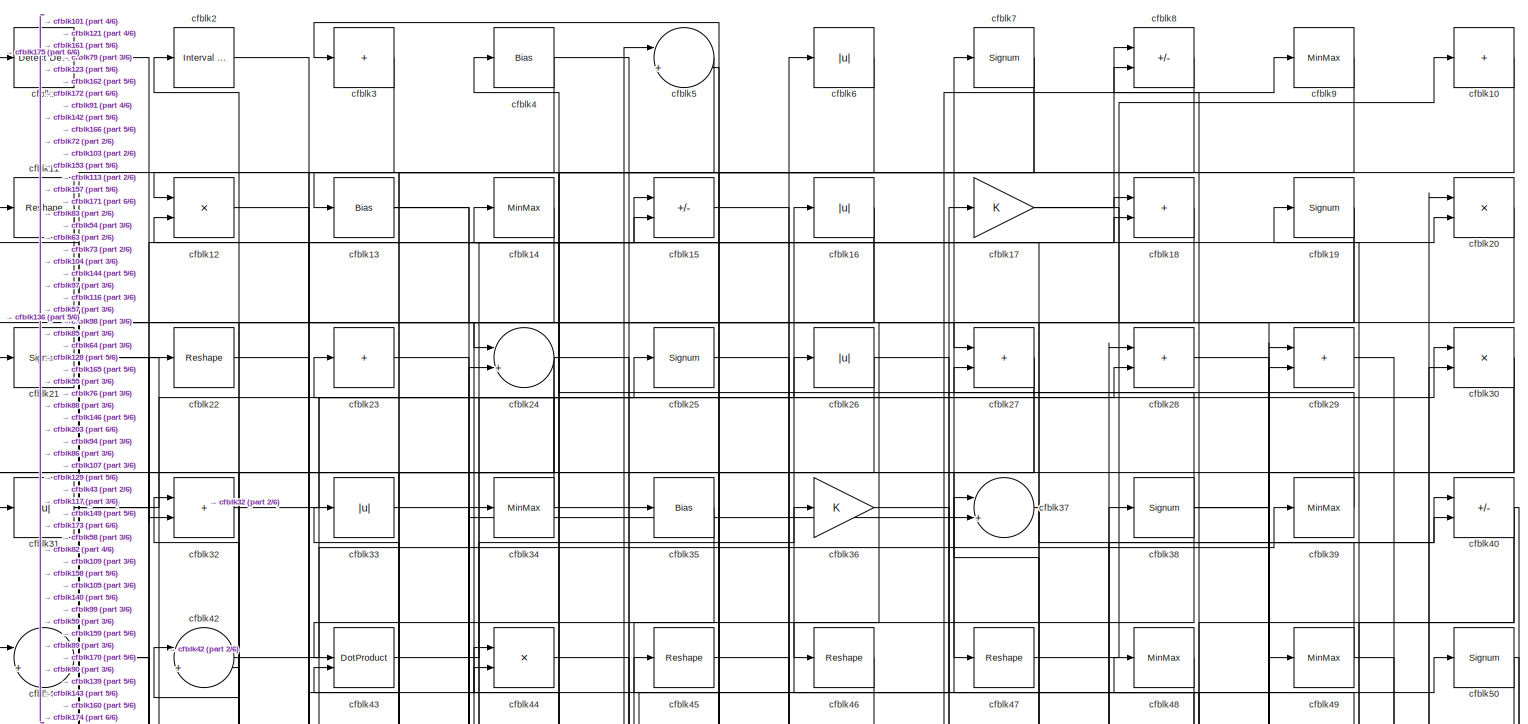
[diagram: root canvas - part 1/6, full width, top band]
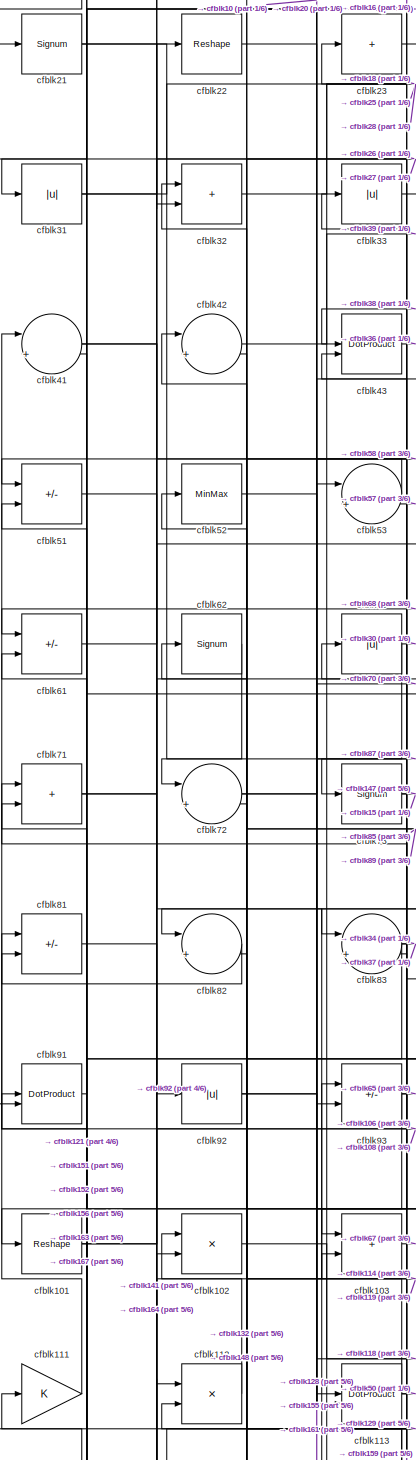
[diagram: root canvas - part 2/6, middle left region]
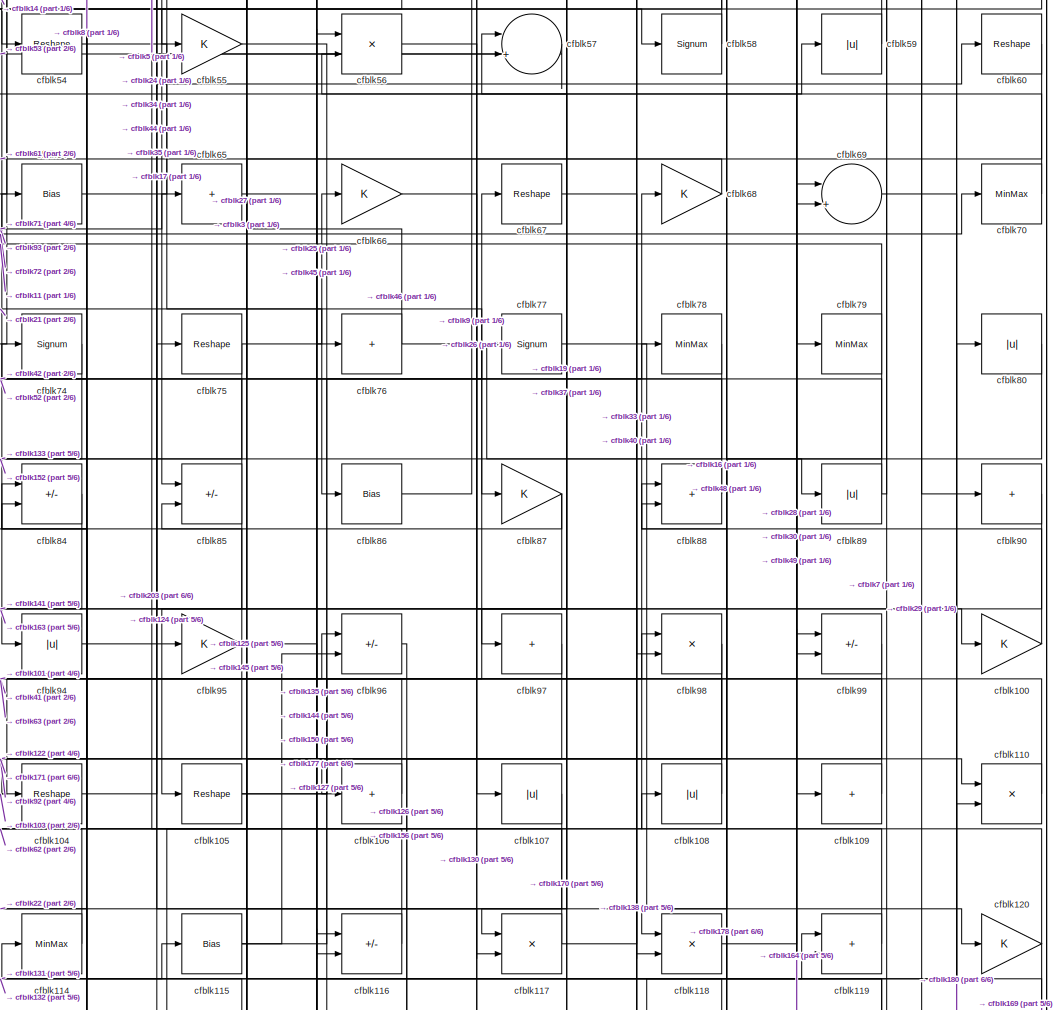
[diagram: root canvas - part 3/6, central region]
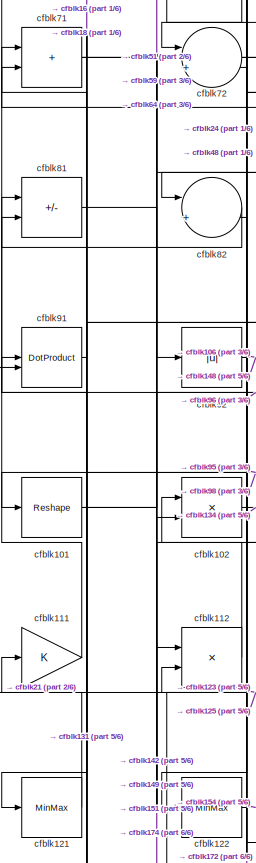
[diagram: root canvas - part 4/6, middle left region]
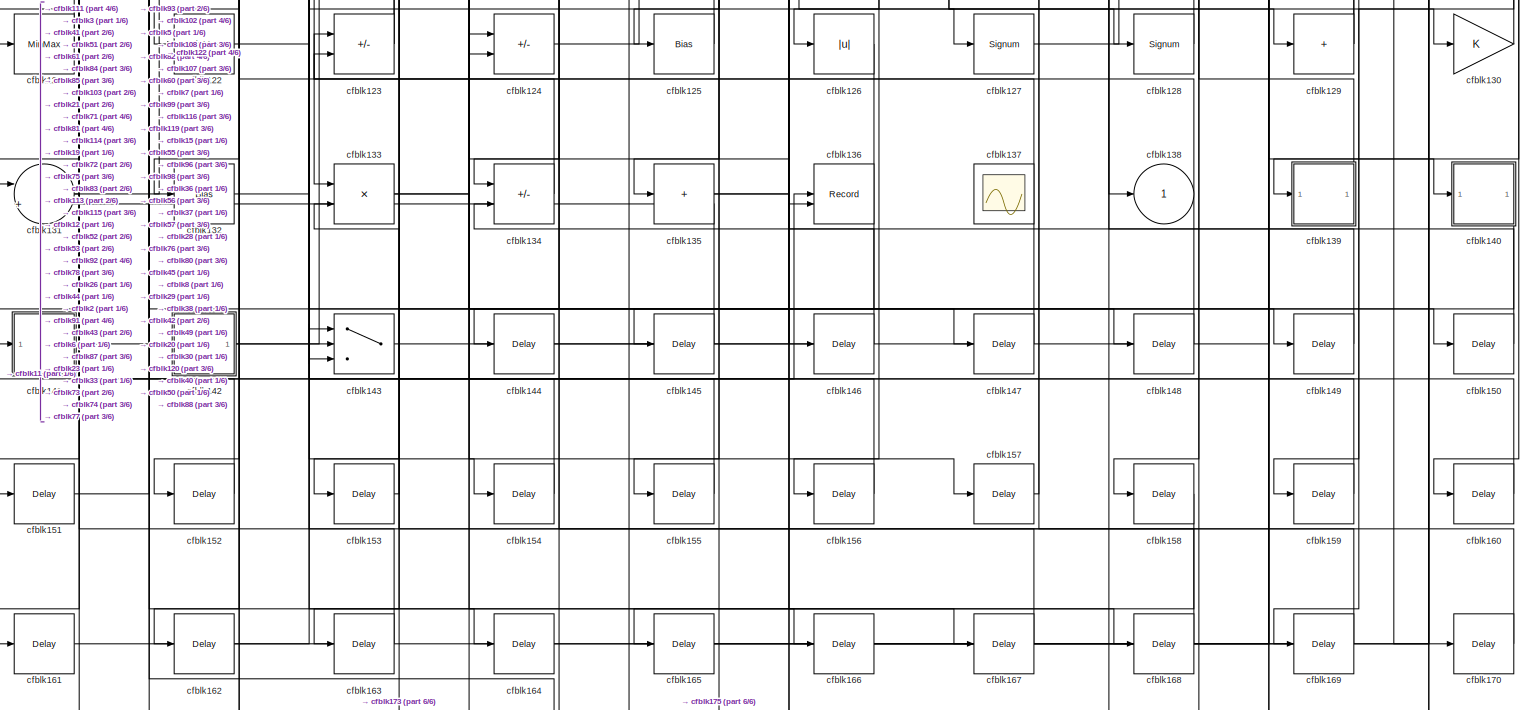
[diagram: root canvas - part 5/6, full width, bottom band]
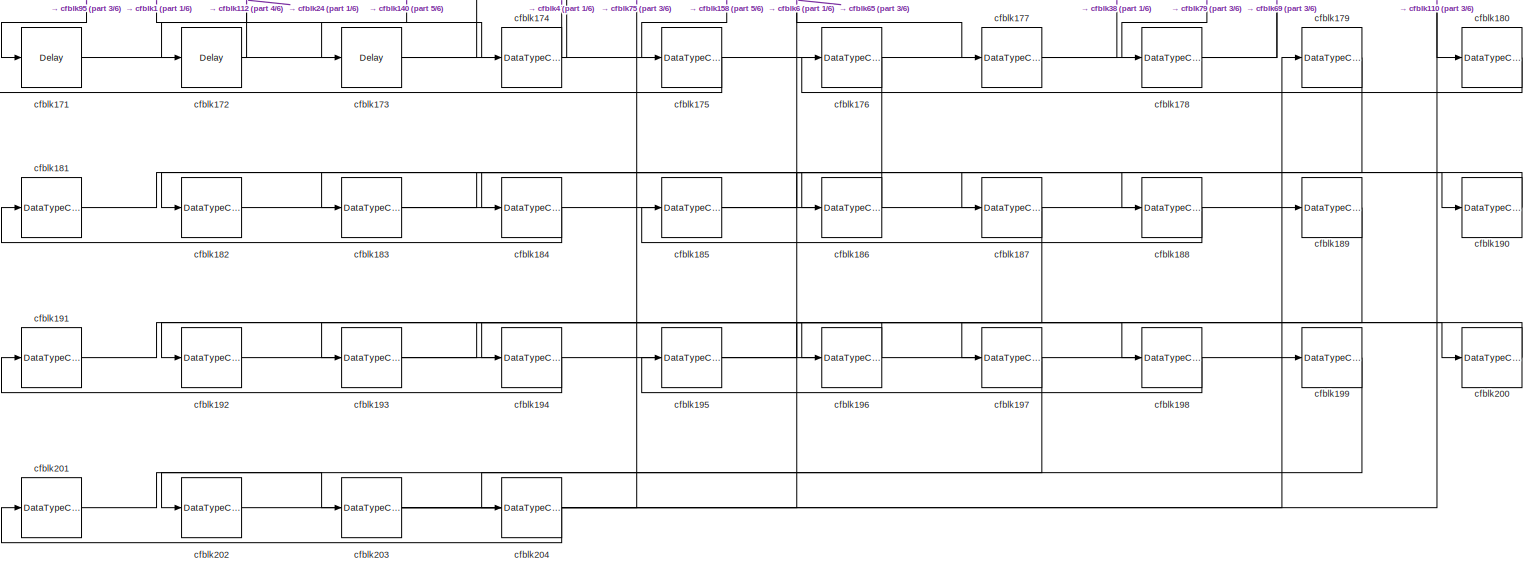
[diagram: root canvas - part 6/6, full width, bottom band]
MODEL slx_ead80d2f9cbe
KIND model
CONFIG AbsTol = auto
CONFIG EnableMultiTasking = off
CONFIG FixedStep = auto
CONFIG MaxStep = auto
CONFIG MinStep = auto
CONFIG RelTol = 1e-3
CONFIG SampleTimeConstraint = Unconstrained
CONFIG SolverName = VariableStepAuto
CONFIG StartTime = 0.0
CONFIG StopTime = 10.0
BLOCK [Reference] cfblk1  REF=simulink/Logic and Bit
Operations/Detect
Decrease
  LibrarySourceBlock = hdlsllib/Logic and Bit\nOperations/Detect\nDecrease
  SourceBlock = simulink/Logic and Bit\nOperations/Detect\nDecrease
  SourceType = Detect Decrease
BLOCK [Sum] cfblk10
  IconShape = rectangular
  Inputs = +
BLOCK [Gain] cfblk100
BLOCK [Reshape] cfblk101
BLOCK [Product] cfblk102
  Inputs = */
  RndMeth = Zero
  SaturateOnIntegerOverflow = on
BLOCK [Sum] cfblk103
  IconShape = rectangular
BLOCK [Reshape] cfblk104
BLOCK [Reshape] cfblk105
BLOCK [Sum] cfblk106
  IconShape = rectangular
  Inputs = +
BLOCK [Abs] cfblk107
  SaturateOnIntegerOverflow = off
BLOCK [Abs] cfblk108
  SaturateOnIntegerOverflow = off
BLOCK [Sum] cfblk109
  IconShape = rectangular
  Inputs = +
BLOCK [Reshape] cfblk11
BLOCK [Product] cfblk110
  Inputs = */
  RndMeth = Zero
  SaturateOnIntegerOverflow = on
BLOCK [Gain] cfblk111
BLOCK [Product] cfblk112
  Inputs = */
  RndMeth = Zero
  SaturateOnIntegerOverflow = on
BLOCK [DotProduct] cfblk113
  OutDataTypeStr = Inherit: Inherit via internal rule
BLOCK [MinMax] cfblk114
BLOCK [Bias] cfblk115
  Bias = 0.0
  SaturateOnIntegerOverflow = off
BLOCK [Sum] cfblk116
  IconShape = rectangular
  Inputs = +-
BLOCK [Product] cfblk117
  Inputs = */
  RndMeth = Zero
  SaturateOnIntegerOverflow = on
BLOCK [Product] cfblk118
  Inputs = */
  RndMeth = Zero
  SaturateOnIntegerOverflow = on
BLOCK [Sum] cfblk119
  IconShape = rectangular
BLOCK [Product] cfblk12
  Inputs = */
  RndMeth = Zero
  SaturateOnIntegerOverflow = on
BLOCK [Gain] cfblk120
BLOCK [MinMax] cfblk121
BLOCK [MinMax] cfblk122
BLOCK [Sum] cfblk123
  IconShape = rectangular
  Inputs = +-
BLOCK [Sum] cfblk124
  IconShape = rectangular
  Inputs = +-
BLOCK [Bias] cfblk125
  Bias = 0.0
  SaturateOnIntegerOverflow = off
BLOCK [Abs] cfblk126
  SaturateOnIntegerOverflow = off
BLOCK [Signum] cfblk127
BLOCK [Signum] cfblk128
BLOCK [Sum] cfblk129
  IconShape = rectangular
  Inputs = +
BLOCK [Bias] cfblk13
  Bias = 0.0
  SaturateOnIntegerOverflow = off
BLOCK [Gain] cfblk130
BLOCK [Sum] cfblk131
  Inputs = |++
BLOCK [Bias] cfblk132
  Bias = 0.0
  SaturateOnIntegerOverflow = off
BLOCK [Product] cfblk133
  Inputs = */
  RndMeth = Zero
  SaturateOnIntegerOverflow = on
BLOCK [Sum] cfblk134
  IconShape = rectangular
  Inputs = +-
BLOCK [Sum] cfblk135
  IconShape = rectangular
  Inputs = +
BLOCK [Record] cfblk136
  CompatibilityTag = XY
  FileSettingsInternal = {"entries":[{"content":{"excelSettings":{"content":{},"type":"Streamout.ExcelSettings"}},"type":"Streamout.FileSettingStorage","uuid":""}],"packageUris":["http:\/\/schema.mathworks.com\/mf0\/streamout_blocks\/R2020a"],"version":"1.0"}
  Layout = [1 1]
  SignalsInternal = {"entries":[{"content":{"signals":[{"content":{"blockPath":[],"dimensions":[1],"domain":"","lineColor":"#a2142f","plots":[1],"port":1,"signalID":275,"signalName":"XY Graph:1"},"type":"RecordBlkView.Signal","uuid":""},{"content":{"blockPath":[],"dimensions":[1],"domain":"","lineColor":"#139fff","plots":[1],"port":2,"signalID":278,"signalName":"XY Graph:2"},"type":"RecordBlkView.Signal","uuid":""}]}...<+144ch>
  VisualizationBindings = {"xyplotplugin":{"info":[{"series":[{"bindingParametersList":[{"parameter":"X-Axis","signalID":275,"signalName":"XY Graph:1"},{"parameter":"Y-Axis","signalID":278,"signalName":"XY Graph:2"}],"seriesID":57373}],"subplotID":1}]}}
  st = -1
BLOCK [Scope] cfblk137
  Floating = on
  NumInputPorts = 1
  ScopeSpecificationString = Simulink.scopes.TimeScopeBlockCfg('CurrentConfiguration', extmgr.ConfigurationSet(extmgr.Configuration('Core','General UI',true,'FigureColor',[0.156862745098039 0.156862745098039 0.156862745098039]),extmgr.Configuration('Core','Source UI',true),extmgr.Configuration('Sources','WiredSimulink',true,'DataLoggingVariableName','ScopeData1','DataLoggingSaveFormat','StructureWithTime','DataLoggingLimitDat...<+2713ch>
BLOCK [Outport] cfblk138
  VectorParamsAs1DForOutWhenUnconnected = off
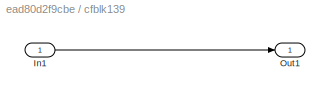
BLOCK [SubSystem] cfblk139
  LibrarySourceBlock = hdlsllib/Ports &\nSubsystems/Subsystem
BLOCK [Inport] cfblk139/In1
BLOCK [Outport] cfblk139/Out1
BLOCK [MinMax] cfblk14
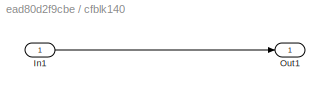
BLOCK [SubSystem] cfblk140
  LibrarySourceBlock = hdlsllib/Ports &\nSubsystems/Subsystem
BLOCK [Inport] cfblk140/In1
BLOCK [Outport] cfblk140/Out1
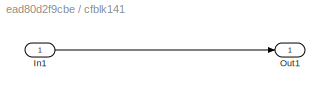
BLOCK [SubSystem] cfblk141
  LibrarySourceBlock = hdlsllib/Ports &\nSubsystems/Subsystem
BLOCK [Inport] cfblk141/In1
BLOCK [Outport] cfblk141/Out1
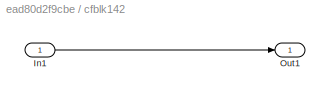
BLOCK [SubSystem] cfblk142
  LibrarySourceBlock = hdlsllib/Ports &\nSubsystems/Subsystem
BLOCK [Inport] cfblk142/In1
BLOCK [Outport] cfblk142/Out1
BLOCK [Switch] cfblk143
  InputSameDT = off
  SaturateOnIntegerOverflow = off
BLOCK [Delay] cfblk144
  InputPortMap = u0
  SampleTime = 1
BLOCK [Delay] cfblk145
  InputPortMap = u0
  SampleTime = 1
BLOCK [Delay] cfblk146
  InputPortMap = u0
  SampleTime = 1
BLOCK [Delay] cfblk147
  InputPortMap = u0
  SampleTime = 1
BLOCK [Delay] cfblk148
  InputPortMap = u0
  SampleTime = 1
BLOCK [Delay] cfblk149
  InputPortMap = u0
  SampleTime = 1
BLOCK [Sum] cfblk15
  IconShape = rectangular
  Inputs = +-
BLOCK [Delay] cfblk150
  InputPortMap = u0
  SampleTime = 1
BLOCK [Delay] cfblk151
  InputPortMap = u0
  SampleTime = 1
BLOCK [Delay] cfblk152
  InputPortMap = u0
  SampleTime = 1
BLOCK [Delay] cfblk153
  InputPortMap = u0
  SampleTime = 1
BLOCK [Delay] cfblk154
  InputPortMap = u0
  SampleTime = 1
BLOCK [Delay] cfblk155
  InputPortMap = u0
  SampleTime = 1
BLOCK [Delay] cfblk156
  InputPortMap = u0
  SampleTime = 1
BLOCK [Delay] cfblk157
  InputPortMap = u0
  SampleTime = 1
BLOCK [Delay] cfblk158
  InputPortMap = u0
  SampleTime = 1
BLOCK [Delay] cfblk159
  InputPortMap = u0
  SampleTime = 1
BLOCK [Abs] cfblk16
  SaturateOnIntegerOverflow = off
BLOCK [Delay] cfblk160
  InputPortMap = u0
  SampleTime = 1
BLOCK [Delay] cfblk161
  InputPortMap = u0
  SampleTime = 1
BLOCK [Delay] cfblk162
  InputPortMap = u0
  SampleTime = 1
BLOCK [Delay] cfblk163
  InputPortMap = u0
  SampleTime = 1
BLOCK [Delay] cfblk164
  InputPortMap = u0
  SampleTime = 1
BLOCK [Delay] cfblk165
  InputPortMap = u0
  SampleTime = 1
BLOCK [Delay] cfblk166
  InputPortMap = u0
  SampleTime = 1
BLOCK [Delay] cfblk167
  InputPortMap = u0
  SampleTime = 1
BLOCK [Delay] cfblk168
  InputPortMap = u0
  SampleTime = 1
BLOCK [Delay] cfblk169
  InputPortMap = u0
  SampleTime = 1
BLOCK [Gain] cfblk17
BLOCK [Delay] cfblk170
  InputPortMap = u0
  SampleTime = 1
BLOCK [Delay] cfblk171
  InputPortMap = u0
  SampleTime = 1
BLOCK [Delay] cfblk172
  InputPortMap = u0
  SampleTime = 1
BLOCK [Delay] cfblk173
  InputPortMap = u0
  SampleTime = 1
BLOCK [DataTypeConversion] cfblk174
  RndMeth = Floor
  SaturateOnIntegerOverflow = off
BLOCK [DataTypeConversion] cfblk175
  OutDataTypeStr = uint8
  RndMeth = Floor
  SaturateOnIntegerOverflow = off
BLOCK [DataTypeConversion] cfblk176
  RndMeth = Floor
  SaturateOnIntegerOverflow = off
BLOCK [DataTypeConversion] cfblk177
  OutDataTypeStr = uint8
  RndMeth = Floor
  SaturateOnIntegerOverflow = off
BLOCK [DataTypeConversion] cfblk178
  OutDataTypeStr = uint8
  RndMeth = Floor
  SaturateOnIntegerOverflow = off
BLOCK [DataTypeConversion] cfblk179
  RndMeth = Floor
  SaturateOnIntegerOverflow = off
BLOCK [Sum] cfblk18
  IconShape = rectangular
BLOCK [DataTypeConversion] cfblk180
  OutDataTypeStr = uint8
  RndMeth = Floor
  SaturateOnIntegerOverflow = off
BLOCK [DataTypeConversion] cfblk181
  RndMeth = Floor
  SaturateOnIntegerOverflow = off
BLOCK [DataTypeConversion] cfblk182
  OutDataTypeStr = uint8
  RndMeth = Floor
  SaturateOnIntegerOverflow = off
BLOCK [DataTypeConversion] cfblk183
  RndMeth = Floor
  SaturateOnIntegerOverflow = off
BLOCK [DataTypeConversion] cfblk184
  OutDataTypeStr = uint8
  RndMeth = Floor
  SaturateOnIntegerOverflow = off
BLOCK [DataTypeConversion] cfblk185
  RndMeth = Floor
  SaturateOnIntegerOverflow = off
BLOCK [DataTypeConversion] cfblk186
  OutDataTypeStr = uint8
  RndMeth = Floor
  SaturateOnIntegerOverflow = off
BLOCK [DataTypeConversion] cfblk187
  RndMeth = Floor
  SaturateOnIntegerOverflow = off
BLOCK [DataTypeConversion] cfblk188
  OutDataTypeStr = uint8
  RndMeth = Floor
  SaturateOnIntegerOverflow = off
BLOCK [DataTypeConversion] cfblk189
  RndMeth = Floor
  SaturateOnIntegerOverflow = off
BLOCK [Signum] cfblk19
BLOCK [DataTypeConversion] cfblk190
  OutDataTypeStr = uint8
  RndMeth = Floor
  SaturateOnIntegerOverflow = off
BLOCK [DataTypeConversion] cfblk191
  RndMeth = Floor
  SaturateOnIntegerOverflow = off
BLOCK [DataTypeConversion] cfblk192
  OutDataTypeStr = uint8
  RndMeth = Floor
  SaturateOnIntegerOverflow = off
BLOCK [DataTypeConversion] cfblk193
  RndMeth = Floor
  SaturateOnIntegerOverflow = off
BLOCK [DataTypeConversion] cfblk194
  OutDataTypeStr = uint8
  RndMeth = Floor
  SaturateOnIntegerOverflow = off
BLOCK [DataTypeConversion] cfblk195
  RndMeth = Floor
  SaturateOnIntegerOverflow = off
BLOCK [DataTypeConversion] cfblk196
  OutDataTypeStr = uint8
  RndMeth = Floor
  SaturateOnIntegerOverflow = off
BLOCK [DataTypeConversion] cfblk197
  RndMeth = Floor
  SaturateOnIntegerOverflow = off
BLOCK [DataTypeConversion] cfblk198
  OutDataTypeStr = uint8
  RndMeth = Floor
  SaturateOnIntegerOverflow = off
BLOCK [DataTypeConversion] cfblk199
  RndMeth = Floor
  SaturateOnIntegerOverflow = off
BLOCK [Reference] cfblk2  REF=hdlsllib/Logic and Bit
Operations/Interval Test
  SourceBlock = hdlsllib/Logic and Bit\nOperations/Interval Test
  SourceType = Interval Test
BLOCK [Product] cfblk20
  Inputs = */
  RndMeth = Zero
  SaturateOnIntegerOverflow = on
BLOCK [DataTypeConversion] cfblk200
  OutDataTypeStr = uint8
  RndMeth = Floor
  SaturateOnIntegerOverflow = off
BLOCK [DataTypeConversion] cfblk201
  RndMeth = Floor
  SaturateOnIntegerOverflow = off
BLOCK [DataTypeConversion] cfblk202
  OutDataTypeStr = uint8
  RndMeth = Floor
  SaturateOnIntegerOverflow = off
BLOCK [DataTypeConversion] cfblk203
  RndMeth = Floor
  SaturateOnIntegerOverflow = off
BLOCK [DataTypeConversion] cfblk204
  OutDataTypeStr = uint8
  RndMeth = Floor
  SaturateOnIntegerOverflow = off
BLOCK [Signum] cfblk21
BLOCK [Reshape] cfblk22
BLOCK [Sum] cfblk23
  IconShape = rectangular
  Inputs = +
BLOCK [Sum] cfblk24
  Inputs = |++
BLOCK [Signum] cfblk25
BLOCK [Abs] cfblk26
  SaturateOnIntegerOverflow = off
BLOCK [Sum] cfblk27
  IconShape = rectangular
BLOCK [Sum] cfblk28
  IconShape = rectangular
BLOCK [Sum] cfblk29
  IconShape = rectangular
BLOCK [Sum] cfblk3
  IconShape = rectangular
  Inputs = +
BLOCK [Product] cfblk30
  Inputs = */
  RndMeth = Zero
  SaturateOnIntegerOverflow = on
BLOCK [Abs] cfblk31
  SaturateOnIntegerOverflow = off
BLOCK [Sum] cfblk32
  IconShape = rectangular
BLOCK [Abs] cfblk33
  SaturateOnIntegerOverflow = off
BLOCK [MinMax] cfblk34
BLOCK [Bias] cfblk35
  Bias = 0.0
  SaturateOnIntegerOverflow = off
BLOCK [Gain] cfblk36
BLOCK [Sum] cfblk37
  Inputs = |++
BLOCK [Signum] cfblk38
BLOCK [MinMax] cfblk39
BLOCK [Bias] cfblk4
  Bias = 0.0
  SaturateOnIntegerOverflow = off
BLOCK [Sum] cfblk40
  IconShape = rectangular
  Inputs = +-
BLOCK [Sum] cfblk41
  Inputs = |++
BLOCK [Sum] cfblk42
  Inputs = |++
BLOCK [DotProduct] cfblk43
  OutDataTypeStr = Inherit: Inherit via internal rule
BLOCK [Product] cfblk44
  Inputs = */
  RndMeth = Zero
  SaturateOnIntegerOverflow = on
BLOCK [Reshape] cfblk45
BLOCK [Reshape] cfblk46
BLOCK [Reshape] cfblk47
BLOCK [MinMax] cfblk48
BLOCK [MinMax] cfblk49
BLOCK [Sum] cfblk5
  Inputs = |++
BLOCK [Signum] cfblk50
BLOCK [Sum] cfblk51
  IconShape = rectangular
  Inputs = +-
BLOCK [MinMax] cfblk52
BLOCK [Sum] cfblk53
  Inputs = |++
BLOCK [Reshape] cfblk54
BLOCK [Gain] cfblk55
BLOCK [Product] cfblk56
  Inputs = */
  RndMeth = Zero
  SaturateOnIntegerOverflow = on
BLOCK [Sum] cfblk57
  Inputs = |++
BLOCK [Signum] cfblk58
BLOCK [Abs] cfblk59
  SaturateOnIntegerOverflow = off
BLOCK [Abs] cfblk6
  SaturateOnIntegerOverflow = off
BLOCK [Reshape] cfblk60
BLOCK [Sum] cfblk61
  IconShape = rectangular
  Inputs = +-
BLOCK [Signum] cfblk62
BLOCK [Abs] cfblk63
  SaturateOnIntegerOverflow = off
BLOCK [Bias] cfblk64
  Bias = 0.0
  SaturateOnIntegerOverflow = off
BLOCK [Sum] cfblk65
  IconShape = rectangular
  Inputs = +
BLOCK [Gain] cfblk66
BLOCK [Reshape] cfblk67
BLOCK [Gain] cfblk68
BLOCK [Sum] cfblk69
  Inputs = |++
BLOCK [Signum] cfblk7
BLOCK [MinMax] cfblk70
BLOCK [Sum] cfblk71
  IconShape = rectangular
BLOCK [Sum] cfblk72
  Inputs = |++
BLOCK [Signum] cfblk73
BLOCK [Signum] cfblk74
BLOCK [Reshape] cfblk75
BLOCK [Sum] cfblk76
  IconShape = rectangular
  Inputs = +
BLOCK [Signum] cfblk77
BLOCK [MinMax] cfblk78
BLOCK [MinMax] cfblk79
BLOCK [Sum] cfblk8
  IconShape = rectangular
  Inputs = +-
BLOCK [Abs] cfblk80
  SaturateOnIntegerOverflow = off
BLOCK [Sum] cfblk81
  IconShape = rectangular
  Inputs = +-
BLOCK [Sum] cfblk82
  Inputs = |++
BLOCK [Sum] cfblk83
  Inputs = |++
BLOCK [Sum] cfblk84
  IconShape = rectangular
  Inputs = +-
BLOCK [Sum] cfblk85
  IconShape = rectangular
  Inputs = +-
BLOCK [Bias] cfblk86
  Bias = 0.0
  SaturateOnIntegerOverflow = off
BLOCK [Gain] cfblk87
BLOCK [Sum] cfblk88
  IconShape = rectangular
BLOCK [Abs] cfblk89
  SaturateOnIntegerOverflow = off
BLOCK [MinMax] cfblk9
BLOCK [Sum] cfblk90
  IconShape = rectangular
  Inputs = +
BLOCK [DotProduct] cfblk91
  OutDataTypeStr = Inherit: Inherit via internal rule
BLOCK [Abs] cfblk92
  SaturateOnIntegerOverflow = off
BLOCK [Sum] cfblk93
  IconShape = rectangular
  Inputs = +-
BLOCK [Abs] cfblk94
  SaturateOnIntegerOverflow = off
BLOCK [Gain] cfblk95
BLOCK [Sum] cfblk96
  IconShape = rectangular
  Inputs = +-
BLOCK [Sum] cfblk97
  IconShape = rectangular
  Inputs = +
BLOCK [Product] cfblk98
  Inputs = */
  RndMeth = Zero
  SaturateOnIntegerOverflow = on
BLOCK [Sum] cfblk99
  IconShape = rectangular
  Inputs = +-
LINE cfblk100:1 -> cfblk88:1
NET cfblk101:1 -> cfblk59:1, cfblk96:1
LINE cfblk102:1 -> cfblk134:1
LINE cfblk103:1 -> cfblk67:1
LINE cfblk104:1 -> cfblk60:1
NET cfblk105:1 -> cfblk49:1, cfblk78:1
LINE cfblk106:1 -> cfblk63:1
LINE cfblk107:1 -> cfblk145:1
LINE cfblk108:1 -> cfblk41:1
LINE cfblk109:1 -> cfblk48:1
LINE cfblk10:1 -> cfblk113:2
LINE cfblk110:1 -> cfblk74:1
LINE cfblk111:1 -> cfblk81:1
LINE cfblk112:1 -> cfblk102:1
NET cfblk113:1 -> cfblk18:2, cfblk32:1, cfblk50:1
LINE cfblk114:1 -> cfblk62:1
NET cfblk115:1 -> cfblk96:2, cfblk98:1
LINE cfblk116:1 -> cfblk84:1
NET cfblk117:1 -> cfblk33:1, cfblk40:1
LINE cfblk118:1 -> cfblk99:1
LINE cfblk119:1 -> cfblk93:1
LINE cfblk11:1 -> cfblk136:1
NET cfblk120:1 -> cfblk169:1, cfblk68:1
LINE cfblk121:1 -> cfblk21:1
LINE cfblk122:1 -> cfblk154:1
NET cfblk123:1 -> cfblk2:1, cfblk91:1
LINE cfblk124:1 -> cfblk108:1
LINE cfblk125:1 -> cfblk82:2
LINE cfblk126:1 -> cfblk155:1
LINE cfblk127:1 -> cfblk80:1
LINE cfblk128:1 -> cfblk45:1
NET cfblk129:1 -> cfblk42:1, cfblk44:2
LINE cfblk12:1 -> cfblk166:1
LINE cfblk130:1 -> cfblk88:2
NET cfblk131:1 -> cfblk111:1, cfblk114:1
LINE cfblk132:1 -> cfblk115:1
NET cfblk133:1 -> cfblk150:1, cfblk77:1
LINE cfblk134:1 -> cfblk123:1
NET cfblk135:1 -> cfblk119:1, cfblk168:1
LINE cfblk139/In1:1 -> cfblk139/Out1:1
LINE cfblk139:1 -> cfblk8:2
NET cfblk13:1 -> cfblk15:2, cfblk27:1
LINE cfblk140/In1:1 -> cfblk140/Out1:1
LINE cfblk140:1 -> cfblk173:1
LINE cfblk141/In1:1 -> cfblk141/Out1:1
LINE cfblk141:1 -> cfblk103:2
LINE cfblk142/In1:1 -> cfblk142/Out1:1
NET cfblk142:1 -> cfblk26:1, cfblk44:1
LINE cfblk143:1 -> cfblk29:1
LINE cfblk144:1 -> cfblk56:1
LINE cfblk145:1 -> cfblk131:2
LINE cfblk146:1 -> cfblk134:2
LINE cfblk147:1 -> cfblk43:2
LINE cfblk148:1 -> cfblk72:2
LINE cfblk149:1 -> cfblk28:1
LINE cfblk14:1 -> cfblk54:1
LINE cfblk150:1 -> cfblk116:1
LINE cfblk151:1 -> cfblk102:2
LINE cfblk152:1 -> cfblk61:2
LINE cfblk153:1 -> cfblk133:2
LINE cfblk154:1 -> cfblk124:1
LINE cfblk155:1 -> cfblk113:1
LINE cfblk156:1 -> cfblk51:2
LINE cfblk157:1 -> cfblk37:1
LINE cfblk158:1 -> cfblk175:1
LINE cfblk159:1 -> cfblk83:2
LINE cfblk15:1 -> cfblk146:1
LINE cfblk160:1 -> cfblk143:1
LINE cfblk161:1 -> cfblk53:1
LINE cfblk162:1 -> cfblk29:2
LINE cfblk163:1 -> cfblk41:2
LINE cfblk164:1 -> cfblk119:2
LINE cfblk165:1 -> cfblk30:2
LINE cfblk166:1 -> cfblk20:1
LINE cfblk167:1 -> cfblk143:2
LINE cfblk168:1 -> cfblk123:2
LINE cfblk169:1 -> cfblk84:2
NET cfblk16:1 -> cfblk101:1, cfblk31:1
LINE cfblk170:1 -> cfblk57:1
LINE cfblk171:1 -> cfblk24:2
LINE cfblk172:1 -> cfblk112:2
LINE cfblk173:1 -> cfblk38:1
NET cfblk174:1 -> cfblk112:1, cfblk4:1
LINE cfblk175:1 -> cfblk1:1
LINE cfblk176:1 -> cfblk182:1
LINE cfblk177:1 -> cfblk69:1
LINE cfblk178:1 -> cfblk69:2
LINE cfblk179:1 -> cfblk184:1
NET cfblk17:1 -> cfblk79:1, cfblk8:1
LINE cfblk180:1 -> cfblk176:1
LINE cfblk181:1 -> cfblk186:1
LINE cfblk182:1 -> cfblk179:1
LINE cfblk183:1 -> cfblk188:1
LINE cfblk184:1 -> cfblk181:1
LINE cfblk185:1 -> cfblk190:1
LINE cfblk186:1 -> cfblk183:1
LINE cfblk187:1 -> cfblk192:1
LINE cfblk188:1 -> cfblk185:1
LINE cfblk189:1 -> cfblk194:1
LINE cfblk18:1 -> cfblk121:1
LINE cfblk190:1 -> cfblk187:1
LINE cfblk191:1 -> cfblk196:1
LINE cfblk192:1 -> cfblk189:1
LINE cfblk193:1 -> cfblk198:1
LINE cfblk194:1 -> cfblk191:1
LINE cfblk195:1 -> cfblk200:1
LINE cfblk196:1 -> cfblk193:1
LINE cfblk197:1 -> cfblk202:1
LINE cfblk198:1 -> cfblk195:1
LINE cfblk199:1 -> cfblk204:1
NET cfblk19:1 -> cfblk162:1, cfblk97:1
LINE cfblk1:1 -> cfblk174:1
LINE cfblk200:1 -> cfblk197:1
LINE cfblk201:1 -> cfblk203:1
LINE cfblk202:1 -> cfblk199:1
NET cfblk203:1 -> cfblk110:2, cfblk6:1, cfblk75:1
LINE cfblk204:1 -> cfblk201:1
LINE cfblk20:1 -> cfblk46:1
NET cfblk21:1 -> cfblk164:1, cfblk87:1
LINE cfblk22:1 -> cfblk118:2
LINE cfblk23:1 -> cfblk136:2
NET cfblk24:1 -> cfblk116:2, cfblk172:1, cfblk91:2
LINE cfblk25:1 -> cfblk76:1
NET cfblk26:1 -> cfblk107:1, cfblk43:1
NET cfblk27:1 -> cfblk32:2, cfblk55:1
LINE cfblk28:1 -> cfblk109:1
LINE cfblk29:1 -> cfblk90:1
LINE cfblk2:1 -> cfblk24:1
NET cfblk30:1 -> cfblk47:1, cfblk99:2
NET cfblk31:1 -> cfblk18:1, cfblk25:1
LINE cfblk32:1 -> cfblk28:2
LINE cfblk33:1 -> cfblk157:1
NET cfblk34:1 -> cfblk23:1, cfblk98:2
LINE cfblk35:1 -> cfblk85:1
LINE cfblk36:1 -> cfblk129:1
LINE cfblk37:1 -> cfblk117:1
NET cfblk38:1 -> cfblk103:1, cfblk140:1, cfblk27:2, cfblk40:2
LINE cfblk39:1 -> cfblk14:1
LINE cfblk3:1 -> cfblk161:1
NET cfblk40:1 -> cfblk158:1, cfblk159:1, cfblk160:1
NET cfblk41:1 -> cfblk58:1, cfblk83:1
LINE cfblk42:1 -> cfblk39:1
LINE cfblk43:1 -> cfblk36:1
LINE cfblk44:1 -> cfblk57:2
LINE cfblk45:1 -> cfblk117:2
LINE cfblk46:1 -> cfblk94:1
LINE cfblk47:1 -> cfblk10:1
LINE cfblk48:1 -> cfblk82:1
NET cfblk49:1 -> cfblk12:2, cfblk170:1
NET cfblk4:1 -> cfblk13:1, cfblk35:1
NET cfblk50:1 -> cfblk139:1, cfblk143:3
LINE cfblk51:1 -> cfblk92:1
LINE cfblk52:1 -> cfblk128:1
LINE cfblk53:1 -> cfblk51:1
LINE cfblk54:1 -> cfblk86:1
LINE cfblk55:1 -> cfblk127:1
LINE cfblk56:1 -> cfblk130:1
LINE cfblk57:1 -> cfblk53:2
LINE cfblk58:1 -> cfblk16:1
LINE cfblk59:1 -> cfblk7:1
LINE cfblk5:1 -> cfblk144:1
LINE cfblk60:1 -> cfblk125:1
LINE cfblk61:1 -> cfblk22:1
LINE cfblk62:1 -> cfblk72:1
NET cfblk63:1 -> cfblk30:1, cfblk93:2
LINE cfblk64:1 -> cfblk17:1
LINE cfblk65:1 -> cfblk177:1
LINE cfblk66:1 -> cfblk100:1
LINE cfblk67:1 -> cfblk89:1
LINE cfblk68:1 -> cfblk61:1
LINE cfblk69:1 -> cfblk180:1
LINE cfblk6:1 -> cfblk153:1
LINE cfblk70:1 -> cfblk56:2
NET cfblk71:1 -> cfblk142:1, cfblk64:1
NET cfblk72:1 -> cfblk20:2, cfblk70:1
NET cfblk73:1 -> cfblk147:1, cfblk15:1
LINE cfblk74:1 -> cfblk124:2
NET cfblk75:1 -> cfblk152:1, cfblk66:1
NET cfblk76:1 -> cfblk138:1, cfblk3:1
LINE cfblk77:1 -> cfblk120:1
LINE cfblk78:1 -> cfblk133:1
NET cfblk79:1 -> cfblk11:1, cfblk178:1
NET cfblk7:1 -> cfblk12:1, cfblk165:1
LINE cfblk80:1 -> cfblk118:1
LINE cfblk81:1 -> cfblk149:1
LINE cfblk82:1 -> cfblk81:2
NET cfblk83:1 -> cfblk132:1, cfblk34:1, cfblk37:2
LINE cfblk84:1 -> cfblk131:1
NET cfblk85:1 -> cfblk141:1, cfblk52:1
LINE cfblk86:1 -> cfblk9:1
NET cfblk87:1 -> cfblk163:1, cfblk85:2
LINE cfblk88:1 -> cfblk5:2
NET cfblk89:1 -> cfblk19:1, cfblk42:2
LINE cfblk8:1 -> cfblk104:1
LINE cfblk90:1 -> cfblk105:1
LINE cfblk91:1 -> cfblk71:1
NET cfblk92:1 -> cfblk106:1, cfblk148:1
NET cfblk93:1 -> cfblk151:1, cfblk167:1, cfblk65:1
LINE cfblk94:1 -> cfblk95:1
NET cfblk95:1 -> cfblk110:1, cfblk171:1, cfblk71:2
LINE cfblk96:1 -> cfblk156:1
LINE cfblk97:1 -> cfblk5:1
NET cfblk98:1 -> cfblk122:1, cfblk126:1
LINE cfblk99:1 -> cfblk135:1
LINE cfblk9:1 -> cfblk73:1
note: NET lines group one-source signal fan-out (src -> all destinations, sorted); 1:1 wires keep LINE
